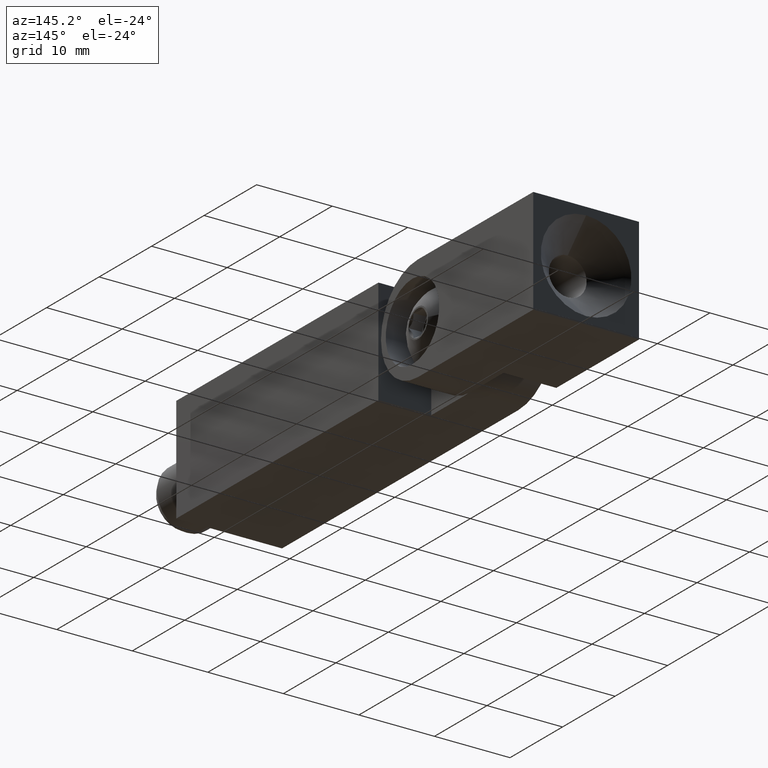
[diagram: clean part render]
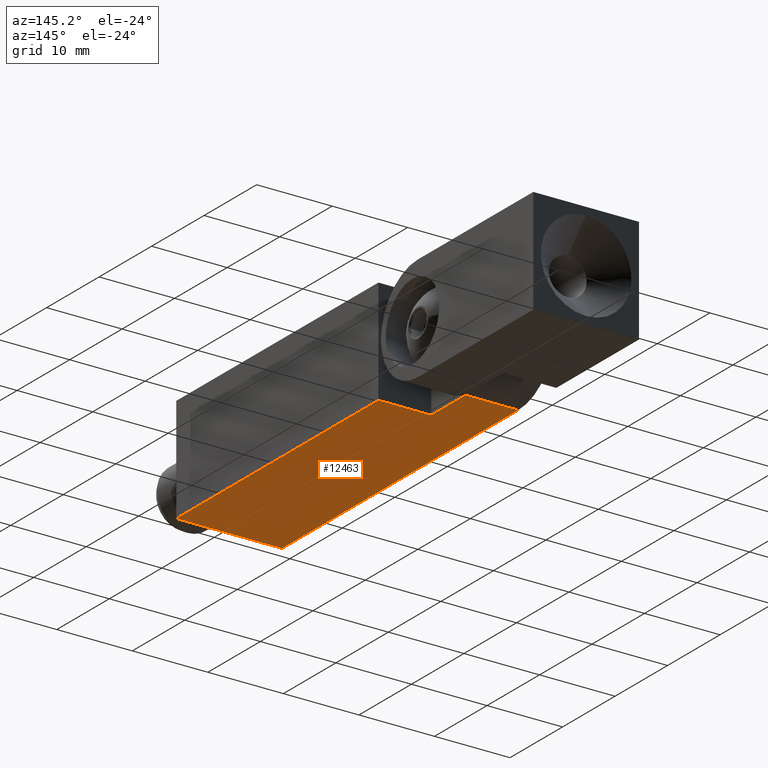
[diagram: same view with one face highlighted and labeled with its STEP entity id]
A machine part, auxiliary view. The second image highlights one B-rep face of the part: STEP entity #12463.
In plain terms, the highlighted planar face has unit normal (-0, 0, -1).
Its self-contained STEP definition (entity closure, byte-faithful):
#104 = AXIS2_PLACEMENT_3D ( 'NONE', #5159, #6456, #7470 ) ;
#226 = VECTOR ( 'NONE', #3762, 1000.000000000000000 ) ;
#803 = VERTEX_POINT ( 'NONE', #14124 ) ;
#828 = ORIENTED_EDGE ( 'NONE', *, *, #6605, .T. ) ;
#1084 = CARTESIAN_POINT ( 'NONE',  ( 0.0000000000000000000, 51.99999999999999300, -6.999999999999999100 ) ) ;
#1542 = ORIENTED_EDGE ( 'NONE', *, *, #7462, .T. ) ;
#1569 = DIRECTION ( 'NONE',  ( 1.000000000000000000, 0.0000000000000000000, 0.0000000000000000000 ) ) ;
#1944 = VERTEX_POINT ( 'NONE', #12808 ) ;
#2458 = VERTEX_POINT ( 'NONE', #7172 ) ;
#3709 = CARTESIAN_POINT ( 'NONE',  ( 0.0000000000000000000, 38.50000000000000000, -6.999999999999999100 ) ) ;
#3762 = DIRECTION ( 'NONE',  ( 1.000000000000000000, 0.0000000000000000000, -6.195440985631454100E-017 ) ) ;
#3811 = VECTOR ( 'NONE', #13095, 1000.000000000000000 ) ;
#3952 = VERTEX_POINT ( 'NONE', #12891 ) ;
#4589 = EDGE_CURVE ( 'NONE', #2458, #8976, #12855, .T. ) ;
#4602 = EDGE_CURVE ( 'NONE', #1944, #803, #10910, .T. ) ;
#4632 = CARTESIAN_POINT ( 'NONE',  ( 6.999999999999999100, 38.50000000000000000, -6.999999999999999100 ) ) ;
#5104 = DIRECTION ( 'NONE',  ( 1.000000000000000000, 0.0000000000000000000, -6.195440985631452900E-017 ) ) ;
#5159 = CARTESIAN_POINT ( 'NONE',  ( -6.999999999999999100, 51.99999999999999300, -6.999999999999999100 ) ) ;
#5312 = VERTEX_POINT ( 'NONE', #9518 ) ;
#5321 = EDGE_CURVE ( 'NONE', #1944, #3952, #5546, .T. ) ;
#5546 = LINE ( 'NONE', #8468, #12310 ) ;
#5869 = ORIENTED_EDGE ( 'NONE', *, *, #4589, .T. ) ;
#6062 = FACE_OUTER_BOUND ( 'NONE', #12425, .T. ) ;
#6456 = DIRECTION ( 'NONE',  ( -6.195440985631454100E-017, 0.0000000000000000000, -1.000000000000000000 ) ) ;
#6605 = EDGE_CURVE ( 'NONE', #803, #2458, #13097, .T. ) ;
#7172 = CARTESIAN_POINT ( 'NONE',  ( 0.0000000000000000000, 38.50000000000000000, -6.999999999999999100 ) ) ;
#7214 = ORIENTED_EDGE ( 'NONE', *, *, #7662, .F. ) ;
#7462 = EDGE_CURVE ( 'NONE', #8976, #5312, #13632, .T. ) ;
#7470 = DIRECTION ( 'NONE',  ( -1.000000000000000000, 0.0000000000000000000, 6.195440985631454100E-017 ) ) ;
#7662 = EDGE_CURVE ( 'NONE', #3952, #5312, #8271, .T. ) ;
#7741 = VECTOR ( 'NONE', #5104, 1000.000000000000000 ) ;
#7860 = DIRECTION ( 'NONE',  ( 1.224646799147353500E-016, -1.000000000000000000, 0.0000000000000000000 ) ) ;
#8271 = LINE ( 'NONE', #11796, #7741 ) ;
#8468 = CARTESIAN_POINT ( 'NONE',  ( -6.999999999999999100, 51.99999999999999300, -6.999999999999999100 ) ) ;
#8976 = VERTEX_POINT ( 'NONE', #4632 ) ;
#9518 = CARTESIAN_POINT ( 'NONE',  ( 6.999999999999999100, 0.0000000000000000000, -6.999999999999999100 ) ) ;
#9900 = PLANE ( 'NONE',  #104 ) ;
#10645 = CARTESIAN_POINT ( 'NONE',  ( 0.0000000000000000000, 45.00000000000000000, -6.999999999999999100 ) ) ;
#10910 = LINE ( 'NONE', #10645, #226 ) ;
#11796 = CARTESIAN_POINT ( 'NONE',  ( -6.999999999999999100, 0.0000000000000000000, -6.999999999999999100 ) ) ;
#11862 = VECTOR ( 'NONE', #7860, 1000.000000000000000 ) ;
#12310 = VECTOR ( 'NONE', #14123, 1000.000000000000000 ) ;
#12425 = EDGE_LOOP ( 'NONE', ( #13360, #12852, #828, #5869, #1542, #7214 ) ) ;
#12463 = ADVANCED_FACE ( 'NONE', ( #6062 ), #9900, .T. ) ;
#12808 = CARTESIAN_POINT ( 'NONE',  ( -6.999999999999999100, 45.00000000000000000, -6.999999999999999100 ) ) ;
#12852 = ORIENTED_EDGE ( 'NONE', *, *, #4602, .T. ) ;
#12855 = LINE ( 'NONE', #3709, #13582 ) ;
#12891 = CARTESIAN_POINT ( 'NONE',  ( -6.999999999999999100, 0.0000000000000000000, -6.999999999999999100 ) ) ;
#13095 = DIRECTION ( 'NONE',  ( -0.0000000000000000000, -1.000000000000000000, -0.0000000000000000000 ) ) ;
#13097 = LINE ( 'NONE', #1084, #11862 ) ;
#13360 = ORIENTED_EDGE ( 'NONE', *, *, #5321, .F. ) ;
#13582 = VECTOR ( 'NONE', #1569, 1000.000000000000000 ) ;
#13632 = LINE ( 'NONE', #14181, #3811 ) ;
#14123 = DIRECTION ( 'NONE',  ( -0.0000000000000000000, -1.000000000000000000, -0.0000000000000000000 ) ) ;
#14124 = CARTESIAN_POINT ( 'NONE',  ( 0.0000000000000000000, 45.00000000000000000, -6.999999999999999100 ) ) ;
#14181 = CARTESIAN_POINT ( 'NONE',  ( 6.999999999999999100, 51.99999999999999300, -6.999999999999999100 ) ) ;